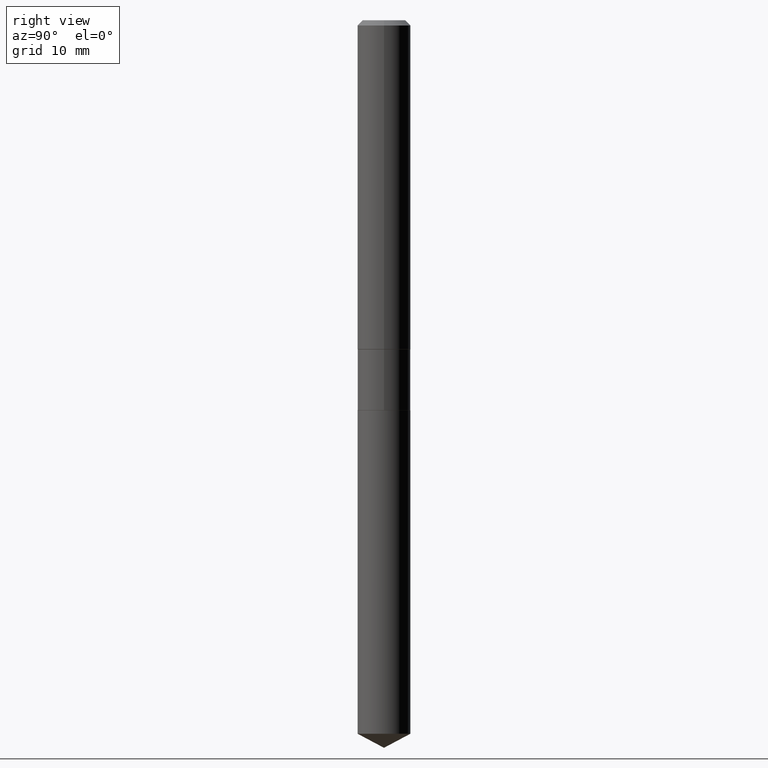
[diagram: clean part render]
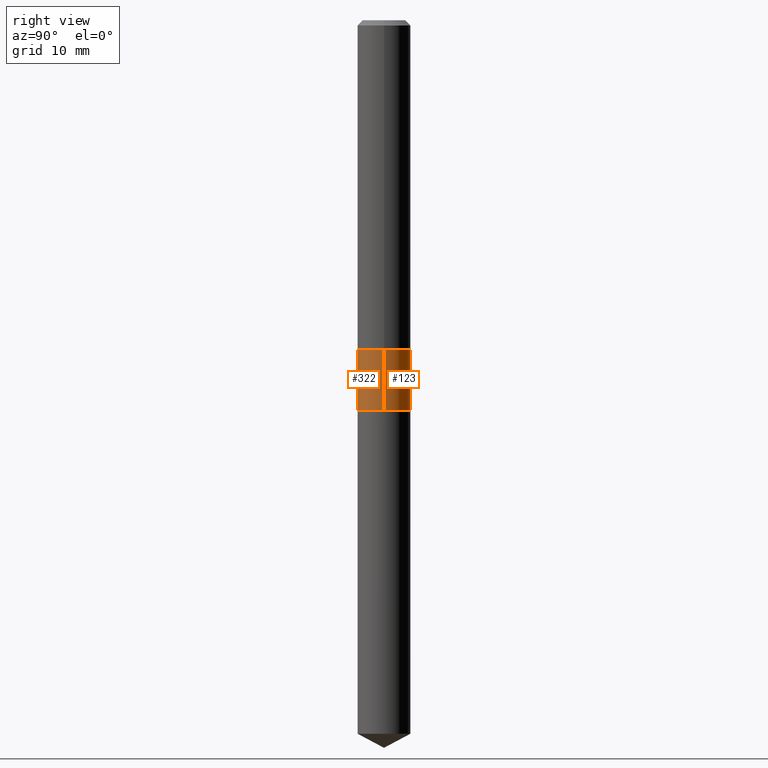
[diagram: same view with one multi-face feature highlighted, each face labeled with its STEP entity id]
A machine part, right view. The highlighted faces form ONE feature: a constant-radius fillet chain: 2 tangent blend faces with common blend radius 2.9769 mm. The faces share edges in the B-rep.
Their STEP definitions:
[1] entity #123 (Cylinder):
#9 = DIRECTION ( 'NONE',  ( 1.000000000000000000, -6.982962677686269866E-15, 0.000000000000000000 ) ) ;
#21 = VERTEX_POINT ( 'NONE', #386 ) ;
#24 = DIRECTION ( 'NONE',  ( 1.000000000000000000, -6.982962677686266711E-15, 4.876176775795935793E-29 ) ) ;
#48 = CARTESIAN_POINT ( 'NONE',  ( 3.572340832075246748E-29, -5.100355939782065986E-15, -1.460799999999999876 ) ) ;
#53 = CARTESIAN_POINT ( 'NONE',  ( -0.1171999999999999709, -4.737378667612574713E-15, -1.460799999999999876 ) ) ;
#63 = FACE_OUTER_BOUND ( 'NONE', #245, .T. ) ;
#106 = EDGE_CURVE ( 'NONE', #129, #324, #240, .T. ) ;
#123 = ADVANCED_FACE ( 'NONE', ( #63 ), #203, .T. ) ;
#129 = VERTEX_POINT ( 'NONE', #136 ) ;
#136 = CARTESIAN_POINT ( 'NONE',  ( -0.1172000000000000125, -4.737378667612574713E-15, -1.729899999999999993 ) ) ;
#147 = CARTESIAN_POINT ( 'NONE',  ( 0.1171999999999999709, -5.918759165606896047E-15, -1.460799999999999876 ) ) ;
#178 = VECTOR ( 'NONE', #381, 39.37007874015748143 ) ;
#197 = ORIENTED_EDGE ( 'NONE', *, *, #345, .F. ) ;
#201 = ORIENTED_EDGE ( 'NONE', *, *, #106, .T. ) ;
#203 = CYLINDRICAL_SURFACE ( 'NONE', #474, 0.1171999999999999847 ) ;
#207 = VERTEX_POINT ( 'NONE', #147 ) ;
#240 = LINE ( 'NONE', #248, #379 ) ;
#245 = EDGE_LOOP ( 'NONE', ( #289, #201, #197, #436 ) ) ;
#248 = CARTESIAN_POINT ( 'NONE',  ( -0.1171999999999999847, 8.327560863108373095E-16, -5.764991925778748420E-30 ) ) ;
#280 = EDGE_CURVE ( 'NONE', #21, #129, #337, .T. ) ;
#284 = CARTESIAN_POINT ( 'NONE',  ( 0.000000000000000000, 0.000000000000000000, 0.000000000000000000 ) ) ;
#286 = AXIS2_PLACEMENT_3D ( 'NONE', #430, #346, #9 ) ;
#289 = ORIENTED_EDGE ( 'NONE', *, *, #280, .T. ) ;
#297 = AXIS2_PLACEMENT_3D ( 'NONE', #48, #343, #315 ) ;
#308 = LINE ( 'NONE', #431, #178 ) ;
#315 = DIRECTION ( 'NONE',  ( 1.000000000000000000, -6.982962677686263555E-15, 0.000000000000000000 ) ) ;
#324 = VERTEX_POINT ( 'NONE', #53 ) ;
#337 = CIRCLE ( 'NONE', #286, 0.1171999999999999986 ) ;
#343 = DIRECTION ( 'NONE',  ( -2.445468806185136597E-29, 3.491481338843145583E-15, 1.000000000000000000 ) ) ;
#345 = EDGE_CURVE ( 'NONE', #207, #324, #433, .T. ) ;
#346 = DIRECTION ( 'NONE',  ( -2.445468806185136597E-29, 3.491481338843145583E-15, 1.000000000000000000 ) ) ;
#360 = DIRECTION ( 'NONE',  ( -2.445468806185136597E-29, 3.491481338843145583E-15, 1.000000000000000000 ) ) ;
#379 = VECTOR ( 'NONE', #405, 39.37007874015748143 ) ;
#381 = DIRECTION ( 'NONE',  ( -2.445468806185136877E-29, 3.491481338843145188E-15, 1.000000000000000000 ) ) ;
#386 = CARTESIAN_POINT ( 'NONE',  ( 0.1171999999999999986, -6.858316793889587922E-15, -1.729899999999999993 ) ) ;
#405 = DIRECTION ( 'NONE',  ( -2.445468806185136877E-29, 3.491481338843145188E-15, 1.000000000000000000 ) ) ;
#430 = CARTESIAN_POINT ( 'NONE',  ( 4.230416487819667730E-29, -6.039913568064757072E-15, -1.729899999999999993 ) ) ;
#431 = CARTESIAN_POINT ( 'NONE',  ( 0.1171999999999999847, -8.184032258248303567E-16, 5.714879181232835774E-30 ) ) ;
#433 = CIRCLE ( 'NONE', #297, 0.1171999999999999709 ) ;
#436 = ORIENTED_EDGE ( 'NONE', *, *, #455, .F. ) ;
#455 = EDGE_CURVE ( 'NONE', #21, #207, #308, .T. ) ;
#474 = AXIS2_PLACEMENT_3D ( 'NONE', #284, #360, #24 ) ;
[2] entity #322 (Cylinder):
#5 = EDGE_LOOP ( 'NONE', ( #103, #471, #56, #168 ) ) ;
#21 = VERTEX_POINT ( 'NONE', #386 ) ;
#53 = CARTESIAN_POINT ( 'NONE',  ( -0.1171999999999999709, -4.737378667612574713E-15, -1.460799999999999876 ) ) ;
#56 = ORIENTED_EDGE ( 'NONE', *, *, #455, .T. ) ;
#76 = EDGE_CURVE ( 'NONE', #129, #21, #468, .T. ) ;
#86 = CYLINDRICAL_SURFACE ( 'NONE', #351, 0.1171999999999999847 ) ;
#103 = ORIENTED_EDGE ( 'NONE', *, *, #106, .F. ) ;
#105 = CIRCLE ( 'NONE', #242, 0.1171999999999999709 ) ;
#106 = EDGE_CURVE ( 'NONE', #129, #324, #240, .T. ) ;
#126 = CARTESIAN_POINT ( 'NONE',  ( 0.000000000000000000, 0.000000000000000000, 0.000000000000000000 ) ) ;
#129 = VERTEX_POINT ( 'NONE', #136 ) ;
#133 = DIRECTION ( 'NONE',  ( -2.445468806185136597E-29, 3.491481338843145583E-15, 1.000000000000000000 ) ) ;
#136 = CARTESIAN_POINT ( 'NONE',  ( -0.1172000000000000125, -4.737378667612574713E-15, -1.729899999999999993 ) ) ;
#147 = CARTESIAN_POINT ( 'NONE',  ( 0.1171999999999999709, -5.918759165606896047E-15, -1.460799999999999876 ) ) ;
#150 = CARTESIAN_POINT ( 'NONE',  ( 3.572340832075246748E-29, -5.100355939782065986E-15, -1.460799999999999876 ) ) ;
#168 = ORIENTED_EDGE ( 'NONE', *, *, #382, .F. ) ;
#178 = VECTOR ( 'NONE', #381, 39.37007874015748143 ) ;
#207 = VERTEX_POINT ( 'NONE', #147 ) ;
#240 = LINE ( 'NONE', #248, #379 ) ;
#242 = AXIS2_PLACEMENT_3D ( 'NONE', #150, #392, #304 ) ;
#248 = CARTESIAN_POINT ( 'NONE',  ( -0.1171999999999999847, 8.327560863108373095E-16, -5.764991925778748420E-30 ) ) ;
#282 = DIRECTION ( 'NONE',  ( 1.000000000000000000, -6.982962677686266711E-15, 4.876176775795935793E-29 ) ) ;
#304 = DIRECTION ( 'NONE',  ( 1.000000000000000000, -6.982962677686263555E-15, 0.000000000000000000 ) ) ;
#308 = LINE ( 'NONE', #431, #178 ) ;
#322 = ADVANCED_FACE ( 'NONE', ( #437 ), #86, .T. ) ;
#324 = VERTEX_POINT ( 'NONE', #53 ) ;
#351 = AXIS2_PLACEMENT_3D ( 'NONE', #126, #403, #282 ) ;
#379 = VECTOR ( 'NONE', #405, 39.37007874015748143 ) ;
#381 = DIRECTION ( 'NONE',  ( -2.445468806185136877E-29, 3.491481338843145188E-15, 1.000000000000000000 ) ) ;
#382 = EDGE_CURVE ( 'NONE', #324, #207, #105, .T. ) ;
#386 = CARTESIAN_POINT ( 'NONE',  ( 0.1171999999999999986, -6.858316793889587922E-15, -1.729899999999999993 ) ) ;
#392 = DIRECTION ( 'NONE',  ( -2.445468806185136597E-29, 3.491481338843145583E-15, 1.000000000000000000 ) ) ;
#403 = DIRECTION ( 'NONE',  ( -2.445468806185136597E-29, 3.491481338843145583E-15, 1.000000000000000000 ) ) ;
#405 = DIRECTION ( 'NONE',  ( -2.445468806185136877E-29, 3.491481338843145188E-15, 1.000000000000000000 ) ) ;
#431 = CARTESIAN_POINT ( 'NONE',  ( 0.1171999999999999847, -8.184032258248303567E-16, 5.714879181232835774E-30 ) ) ;
#437 = FACE_OUTER_BOUND ( 'NONE', #5, .T. ) ;
#445 = DIRECTION ( 'NONE',  ( 1.000000000000000000, -6.982962677686269866E-15, 0.000000000000000000 ) ) ;
#455 = EDGE_CURVE ( 'NONE', #21, #207, #308, .T. ) ;
#468 = CIRCLE ( 'NONE', #487, 0.1171999999999999986 ) ;
#471 = ORIENTED_EDGE ( 'NONE', *, *, #76, .T. ) ;
#482 = CARTESIAN_POINT ( 'NONE',  ( 4.230416487819667730E-29, -6.039913568064757072E-15, -1.729899999999999993 ) ) ;
#487 = AXIS2_PLACEMENT_3D ( 'NONE', #482, #133, #445 ) ;